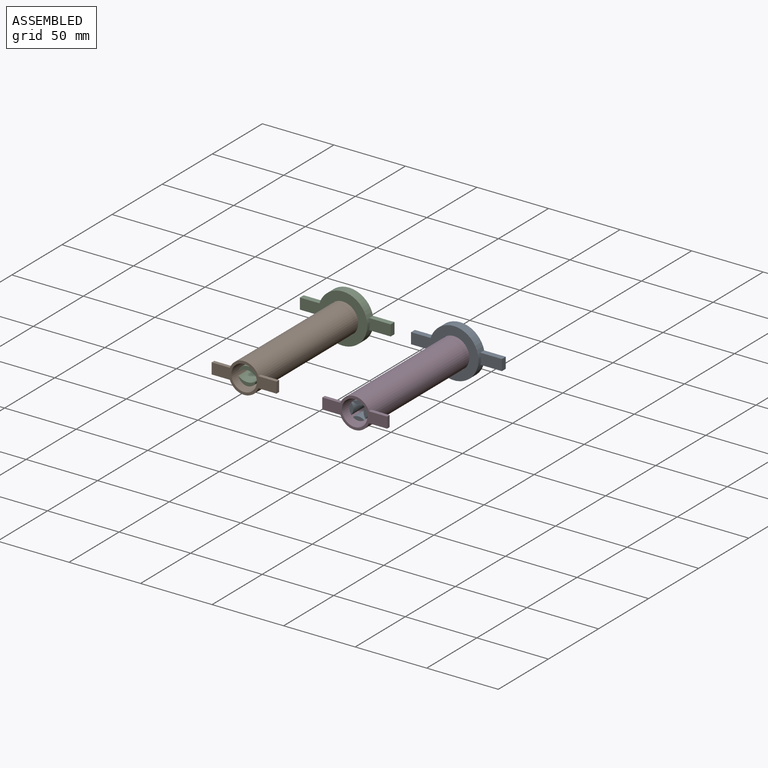
[diagram: assembled view]
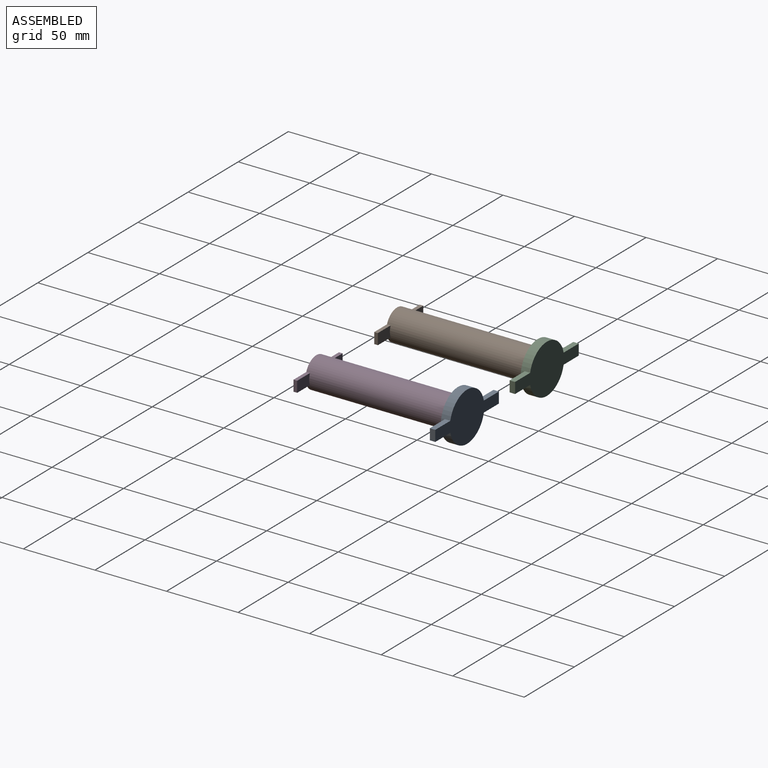
[diagram: assembled view, second angle]
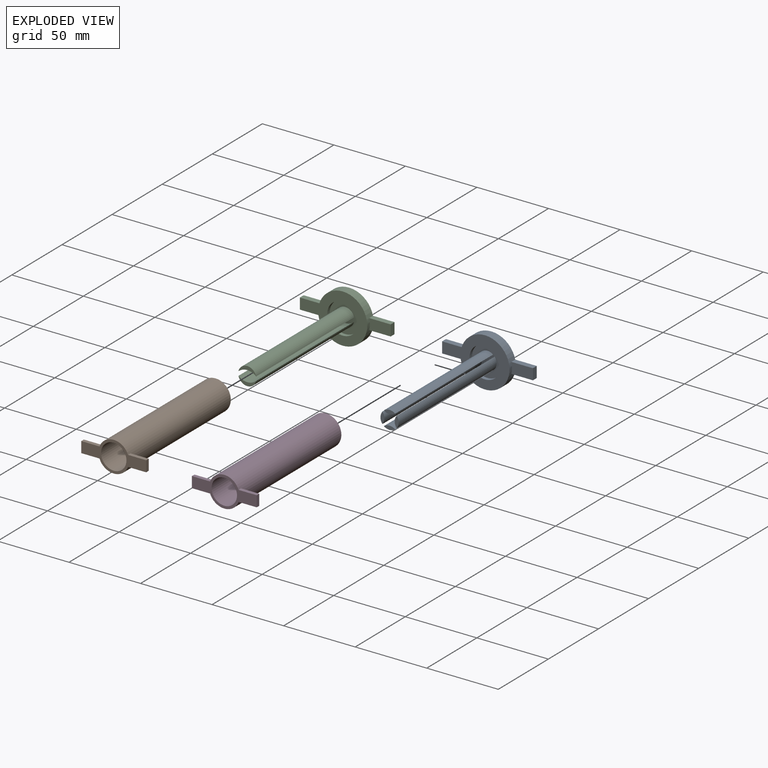
[diagram: exploded view]
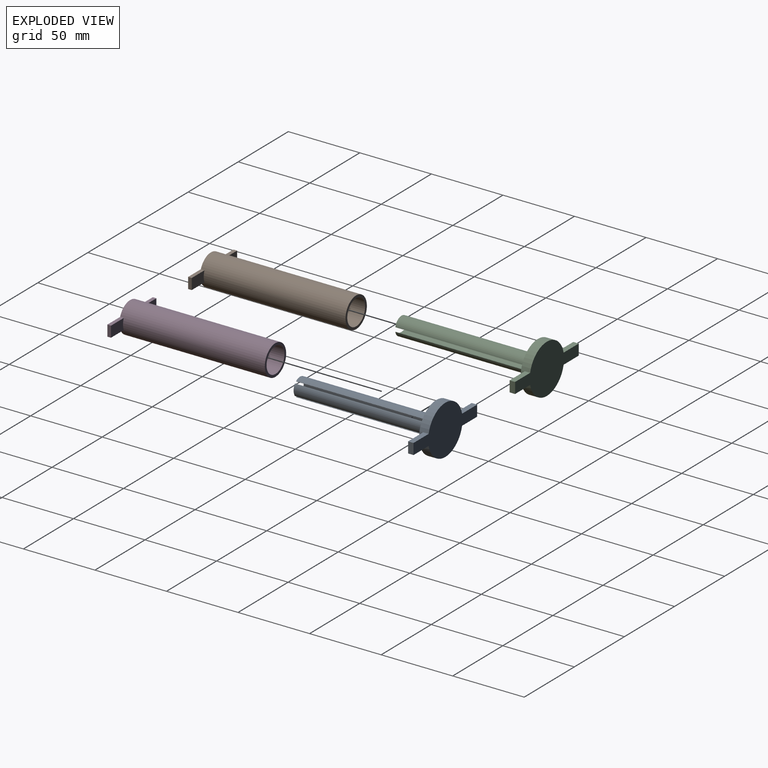
[diagram: exploded view, second angle]
ASSEMBLY  parts=4 mates=3
PART A: 25 faces, bbox 63.5x101.6x34.3 mm
  f0: plane 21.59x21.59mm, normal (0,-1,0), area 306.6mm2, adj f11,f13,f14,f16,f17,f19,f20,f22
  f1: plane 15.03x7.62mm, normal (0,-1,0), area 112.4mm2, adj f2,f3,f7,f8
  f2: plane 15.03x3.81mm, normal (0,0,-1), area 57.3mm2, adj f1,f3,f8,f10
  f3: cylinder r=17.14mm len=34.29mm, axis (0,1,0), area 625.5mm2, adj f1,f2,f4,f6,f7,f9,f10,f12
  f4: plane 15.03x3.81mm, normal (0,0,-1), area 57.3mm2, adj f3,f5,f9,f10
  f5: plane 7.62x3.81mm, normal (1,0,0), area 29mm2, adj f4,f6,f9,f10
  f6: plane 15.03x3.81mm, normal (0,0,1), area 57.3mm2, adj f3,f5,f9,f10
  f7: plane 15.03x3.81mm, normal (0,0,1), area 57.3mm2, adj f1,f3,f8,f10
  f8: plane 7.62x3.81mm, normal (-1,0,0), area 29mm2, adj f1,f2,f7,f10
  f9: plane 15.03x7.62mm, normal (0,-1,0), area 112.4mm2, adj f3,f4,f5,f6
  f10: plane 63.5x34.29mm, normal (0,1,0), area 1148.2mm2, adj f2,f3,f4,f5,f6,f7,f8
  f11: cylinder r=10.79mm len=21.59mm, axis (0,1,0), area 172.3mm2, adj f0,f12
  f12: plane 34.29x34.29mm, normal (0,-1,0), area 557.4mm2, adj f3,f11
  f13: cylinder r=6.35mm len=97.79mm, axis (0,1,0), area 833.9mm2, adj f0,f14,f15
  f14: cylinder r=6.35mm len=97.79mm, axis (0,1,0), area 833.9mm2, adj f0,f13,f15
  f15: plane 7.9x2.76mm, normal (0,-1,0), area 14.9mm2, adj f13,f14
  f16: cylinder r=6.35mm len=97.79mm, axis (0,1,0), area 833.9mm2, adj f0,f17,f18
  f17: cylinder r=6.35mm len=97.79mm, axis (0,1,0), area 833.9mm2, adj f0,f16,f18
  f18: plane 7.9x2.76mm, normal (0,-1,0), area 14.9mm2, adj f16,f17
  f19: cylinder r=6.35mm len=97.79mm, axis (0,1,0), area 833.9mm2, adj f0,f20,f21
  f20: cylinder r=6.35mm len=97.79mm, axis (0,1,0), area 833.9mm2, adj f0,f19,f21
  f21: plane 7.9x2.76mm, normal (0,-1,0), area 14.9mm2, adj f19,f20
  f22: cylinder r=6.35mm len=97.79mm, axis (0,1,0), area 833.9mm2, adj f0,f23,f24
  f23: cylinder r=6.35mm len=97.79mm, axis (0,1,0), area 833.9mm2, adj f0,f22,f24
  f24: plane 7.9x2.76mm, normal (0,-1,0), area 14.9mm2, adj f22,f23
PART B: 12 faces, bbox 45.3x101.6x21.3 mm
  f0: cylinder r=10.67mm len=101.6mm, axis (0,1,0), area 6770.6mm2, adj f2,f3,f5,f6,f7,f8,f9,f11
  f1: cylinder r=8.89mm len=101.6mm, axis (0,1,0), area 5675.1mm2, adj f2,f3
  f2: plane 45.33x21.34mm, normal (0,-1,0), area 295.6mm2, adj f0,f1,f4,f5,f6,f8,f9,f10
  f3: plane 21.34x21.34mm, normal (0,1,0), area 109.2mm2, adj f0,f1
  f4: plane 7.62x2.54mm, normal (-1,0,0), area 19.4mm2, adj f2,f5,f6,f7
  f5: plane 12.7x2.54mm, normal (0,0,-1), area 32.3mm2, adj f0,f2,f4,f7
  f6: plane 12.7x2.54mm, normal (0,0,1), area 32.3mm2, adj f0,f2,f4,f7
  f7: plane 12.7x7.62mm, normal (0,1,0), area 93.2mm2, adj f0,f4,f5,f6
  f8: plane 12.7x2.54mm, normal (0,0,1), area 32.3mm2, adj f0,f2,f10,f11
  f9: plane 12.7x2.54mm, normal (0,0,-1), area 32.3mm2, adj f0,f2,f10,f11
  f10: plane 7.62x2.54mm, normal (1,0,0), area 19.4mm2, adj f2,f8,f9,f11
  f11: plane 12.7x7.62mm, normal (0,1,0), area 93.2mm2, adj f0,f8,f9,f10
PART C: 19 faces, bbox 63.5x101.6x34.3 mm
  f0: plane 21.59x21.59mm, normal (0,-1,0), area 316.6mm2, adj f11,f13,f14,f16,f17
  f1: plane 15.03x7.62mm, normal (0,-1,0), area 112.4mm2, adj f2,f3,f7,f8
  f2: plane 15.03x3.81mm, normal (0,0,-1), area 57.3mm2, adj f1,f3,f8,f10
  f3: cylinder r=17.14mm len=34.29mm, axis (0,1,0), area 625.5mm2, adj f1,f2,f4,f6,f7,f9,f10,f12
  f4: plane 15.03x3.81mm, normal (0,0,-1), area 57.3mm2, adj f3,f5,f9,f10
  f5: plane 7.62x3.81mm, normal (1,0,0), area 29mm2, adj f4,f6,f9,f10
  f6: plane 15.03x3.81mm, normal (0,0,1), area 57.3mm2, adj f3,f5,f9,f10
  f7: plane 15.03x3.81mm, normal (0,0,1), area 57.3mm2, adj f1,f3,f8,f10
  f8: plane 7.62x3.81mm, normal (-1,0,0), area 29mm2, adj f1,f2,f7,f10
  f9: plane 15.03x7.62mm, normal (0,-1,0), area 112.4mm2, adj f3,f4,f5,f6
  f10: plane 63.5x34.29mm, normal (0,1,0), area 1148.2mm2, adj f2,f3,f4,f5,f6,f7,f8
  f11: cylinder r=10.79mm len=21.59mm, axis (0,1,0), area 172.3mm2, adj f0,f12
  f12: plane 34.29x34.29mm, normal (0,-1,0), area 557.4mm2, adj f3,f11
  f13: cylinder r=9.16mm len=97.79mm, axis (0,1,0), area 1330.6mm2, adj f0,f14,f15
  f14: cylinder r=6.35mm len=97.79mm, axis (0,1,0), area 1675.3mm2, adj f0,f13,f15
  f15: plane 12.39x4.95mm, normal (0,-1,0), area 25.2mm2, adj f13,f14
  f16: cylinder r=9.16mm len=97.79mm, axis (0,1,0), area 1324.6mm2, adj f0,f17,f18
  f17: cylinder r=6.35mm len=97.79mm, axis (0,1,0), area 1656mm2, adj f0,f16,f18
  f18: plane 12.34x4.86mm, normal (0,-1,0), area 24.3mm2, adj f16,f17
PART D: same geometry as B
PLACE A t=(26.49,-20.19,-30.37)mm
PLACE B t=(7.42,-22.47,-29.75)mm
PLACE C t=(-51.85,-19.29,-29.79)mm
PLACE D t=(85.76,-24,-30.33)mm
MATE planar B.f0 <-> C.f3  axis (0,1,0) through (14.18,-22.47,-29.75)mm
MATE slider C.f14 <-> B.f0  axis (0,1,0) through (14.18,-23.1,-29.75)mm
MATE planar D.f0 <-> A.f3  axis (0,1,0) through (92.52,-24,-30.33)mm
